MODEL slx_07bf8c61029b
KIND model
CONFIG AbsTol = auto
CONFIG FixedStep = auto
CONFIG MaxStep = auto
CONFIG MinStep = auto
CONFIG RelTol = 1e-3
CONFIG SampleTimeConstraint = Unconstrained
CONFIG Solver = FixedStepDiscrete
CONFIG SolverMode = SingleTasking
CONFIG SolverName = FixedStepDiscrete
CONFIG StartTime = 0.0
CONFIG StopTime = 5000
BLOCK [Scope] Scope
  NumInputPorts = 8
  Ports = [8]
  ScopeSpecificationString = Simulink.scopes.TimeScopeBlockCfg('CurrentConfiguration', extmgr.ConfigurationSet(extmgr.Configuration('Core','General UI',true),extmgr.Configuration('Core','Source UI',true),extmgr.Configuration('Sources','WiredSimulink',true),extmgr.Configuration('Visuals','Time Domain',true,'SerializedDisplays',{struct('MinYLimReal','-0.125','MaxYLimReal','1.125','YLabelReal','','MinYLimMag','0.00000','MaxYLimM...<+6152ch>
BLOCK [DiscretePulseGenerator] break_pulse
  Period = 1e6
  PhaseDelay = 1000
  Ports = [0, 1]
BLOCK [DataTypeConversion] convert1
  OutDataTypeStr = x_nt
  RndMeth = Floor
  SaturateOnIntegerOverflow = off
BLOCK [DataTypeConversion] convert2
  OutDataTypeStr = x_nt
  RndMeth = Floor
  SaturateOnIntegerOverflow = off
BLOCK [DataTypeConversion] convert3
  OutDataTypeStr = boolean
  RndMeth = Floor
  SaturateOnIntegerOverflow = off
BLOCK [DataTypeConversion] convert4
  OutDataTypeStr = boolean
  RndMeth = Floor
  SaturateOnIntegerOverflow = off
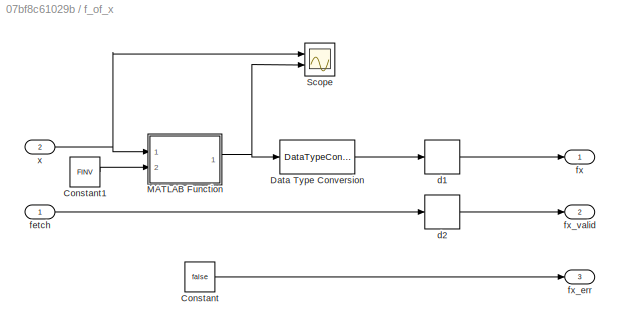
BLOCK [SubSystem] f_of_x
  Ports = [2, 3]
  RequestExecContextInheritance = off
  Variant = off
BLOCK [Constant] f_of_x/Constant
  SampleTime = -1
  Value = false
BLOCK [Constant] f_of_x/Constant1
  SampleTime = -1
  Value = FINV
BLOCK [DataTypeConversion] f_of_x/Data Type Conversion
  OutDataTypeStr = fixdt(1,18,16)
  RndMeth = Floor
  SaturateOnIntegerOverflow = off
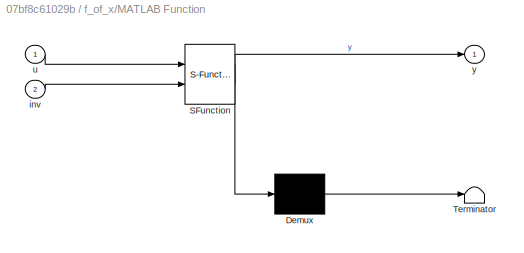
BLOCK [SubSystem] f_of_x/MATLAB Function
  ErrorFcn = Stateflow.Translate.translate
  PermitHierarchicalResolution = ExplicitOnly
  Ports = [2, 1]
  RequestExecContextInheritance = off
  SFBlockType = MATLAB Function
  TreatAsAtomicUnit = on
  Variant = off
BLOCK [Demux] f_of_x/MATLAB Function/ Demux 
  Outputs = 1
  Ports = [1, 1]
BLOCK [S-Function] f_of_x/MATLAB Function/ SFunction 
  EnableBusSupport = on
  FunctionName = sf_sfun
  PortCounts = [2 2]
  Ports = [2, 2]
  SFunctionDeploymentMode = off
  Tag = Stateflow S-Function trackloop_tb1 2
BLOCK [Terminator] f_of_x/MATLAB Function/ Terminator 
BLOCK [Inport] f_of_x/MATLAB Function/inv
  IconDisplay = Port number
  Port = 2
BLOCK [Inport] f_of_x/MATLAB Function/u
  IconDisplay = Port number
BLOCK [Outport] f_of_x/MATLAB Function/y
  IconDisplay = Port number
BLOCK [Scope] f_of_x/Scope
  NumInputPorts = 2
  Ports = [2]
  ScopeSpecificationString = Simulink.scopes.TimeScopeBlockCfg('CurrentConfiguration', extmgr.ConfigurationSet(extmgr.Configuration('Core','General UI',true),extmgr.Configuration('Core','Source UI',true),extmgr.Configuration('Sources','WiredSimulink',true,'DataLoggingVariableName','ScopeData1'),extmgr.Configuration('Visuals','Time Domain',true,'SerializedDisplays',{struct('MinYLimReal','-0.125','MaxYLimReal','1.125','YLabelRe...<+2002ch>
BLOCK [Delay] f_of_x/d1
  DelayLength = 1
  InitialCondition = 0
  InputPortMap = u0
  Ports = [1, 1]
BLOCK [Delay] f_of_x/d2
  DelayLength = 1
  InitialCondition = 0
  InputPortMap = u0
  Ports = [1, 1]
BLOCK [Inport] f_of_x/fetch
  IconDisplay = Port number
BLOCK [Outport] f_of_x/fx
  IconDisplay = Port number
BLOCK [Outport] f_of_x/fx_err
  IconDisplay = Port number
  Port = 3
BLOCK [Outport] f_of_x/fx_valid
  IconDisplay = Port number
  Port = 2
BLOCK [Inport] f_of_x/x
  IconDisplay = Port number
  Port = 2
BLOCK [Constant] init_dir
  OutDataTypeStr = fixdt(1,2,0)
  SampleTime = 1
  Value = x_dir
BLOCK [DiscretePulseGenerator] start_pulse
  Period = 1e6
  PhaseDelay = 5
  Ports = [0, 1]
BLOCK [Reference] trackloop  REF=lib_dsphdlcontrol_v1/trackloop  (lib defined in slx_169a934beb0a)
  Ports = [8, 5]
  SourceBlock = lib_dsphdlcontrol_v1/trackloop
  SourceType = Tracking Loop Controller
BLOCK [Constant] x_init
  SampleTime = 1
  Value = x_init
BLOCK [Constant] x_step
  SampleTime = 1
  Value = x_step
ANNOTATION (root): Author: Mike Babst <copyright redacted>
LINE break_pulse:1 -> convert4:1
LINE convert1:1 -> trackloop:3
LINE convert2:1 -> trackloop:4
NET convert3:1 -> Scope:1, trackloop:1
NET convert4:1 -> Scope:2, trackloop:2
LINE f_of_x/Constant1:1 -> f_of_x/MATLAB Function:2
LINE f_of_x/Constant:1 -> f_of_x/fx_err:1
LINE f_of_x/Data Type Conversion:1 -> f_of_x/d1:1
NET f_of_x/MATLAB Function:1 -> f_of_x/Data Type Conversion:1, f_of_x/Scope:2
LINE f_of_x/d1:1 -> f_of_x/fx:1
LINE f_of_x/d2:1 -> f_of_x/fx_valid:1
LINE f_of_x/fetch:1 -> f_of_x/d2:1
NET f_of_x/x:1 -> f_of_x/MATLAB Function:1, f_of_x/Scope:1
NET f_of_x:1 -> Scope:6, trackloop:7
LINE f_of_x:2 -> trackloop:6
LINE f_of_x:3 -> trackloop:8
LINE init_dir:1 -> trackloop:5
LINE start_pulse:1 -> convert3:1
LINE trackloop:1 -> Scope:4
LINE trackloop:2 -> Scope:3
NET trackloop:3 -> Scope:8, f_of_x:1
NET trackloop:4 -> Scope:5, f_of_x:2
LINE trackloop:5 -> Scope:7
LINE x_init:1 -> convert1:1
LINE x_step:1 -> convert2:1
note: NET lines group one-source signal fan-out (src -> all destinations, sorted); 1:1 wires keep LINE
CHART f_of_x/MATLAB Function states=1 transitions=1
  STATE_LABEL 'eML_blk_kernel()'
  STATE_LABEL 'SCRIPT:\nfunction y = fcn(u, inv)\n%#codegen\n\ny = sin(double(u)*2*pi);\n\nif inv\n    y = -y;\nend'
